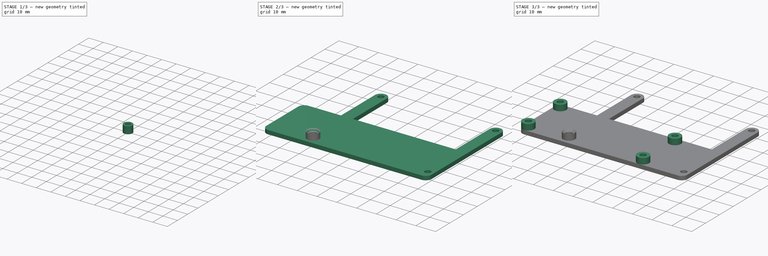
[diagram: build sequence overview — one tinted view per stage of 3, left to right]
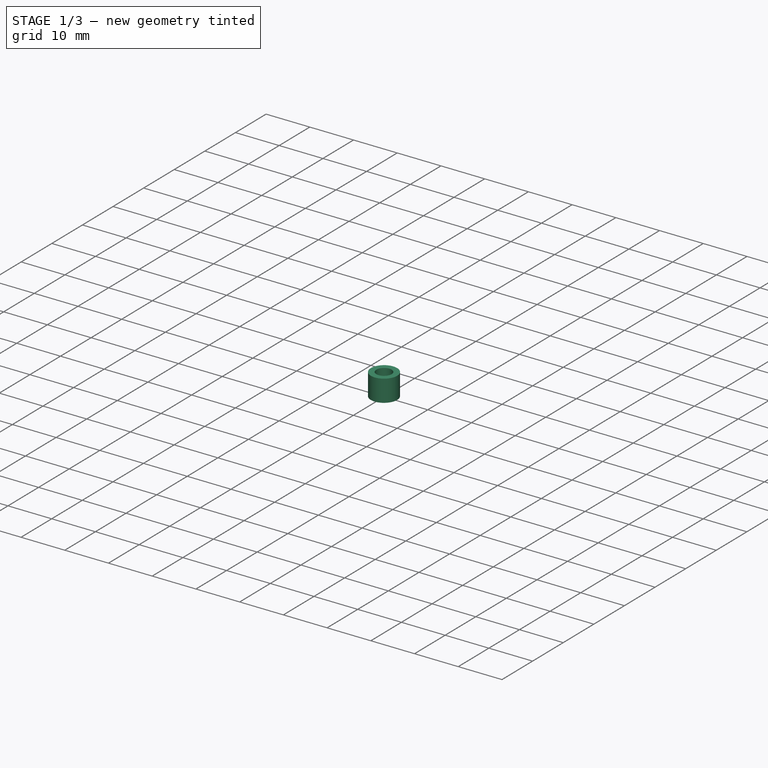
[diagram: stage 1 of 3 — iso view after this stage's code; geometry added in this stage tinted green]
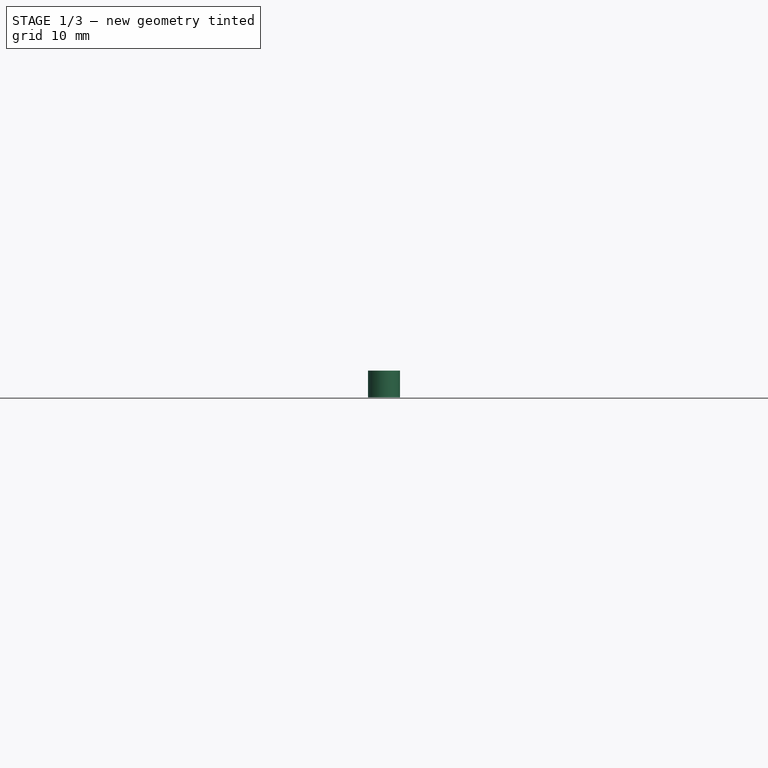
[diagram: stage 1 of 3 — front view after this stage's code; geometry added in this stage tinted green]
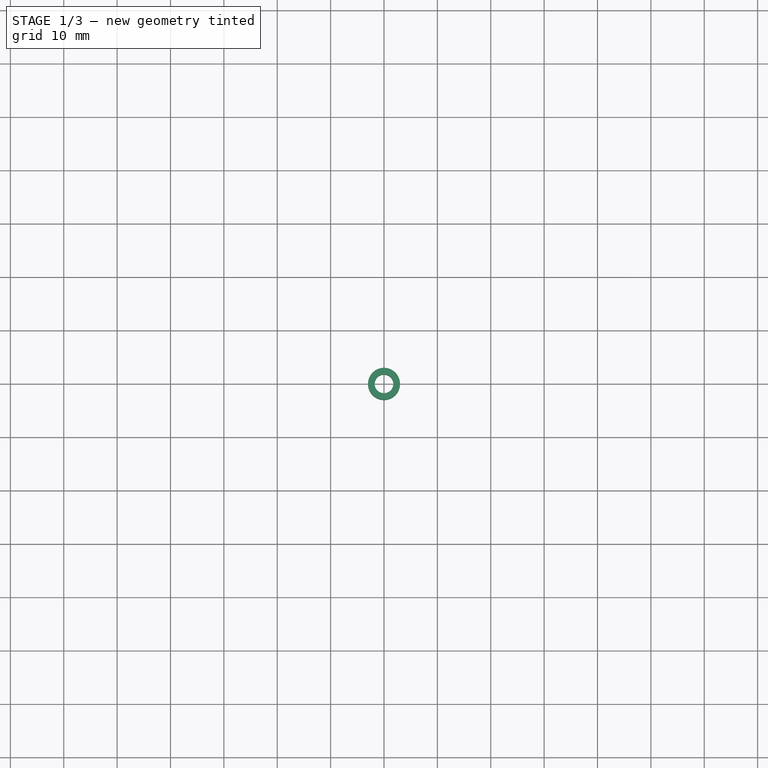
[diagram: stage 1 of 3 — top view after this stage's code; geometry added in this stage tinted green]
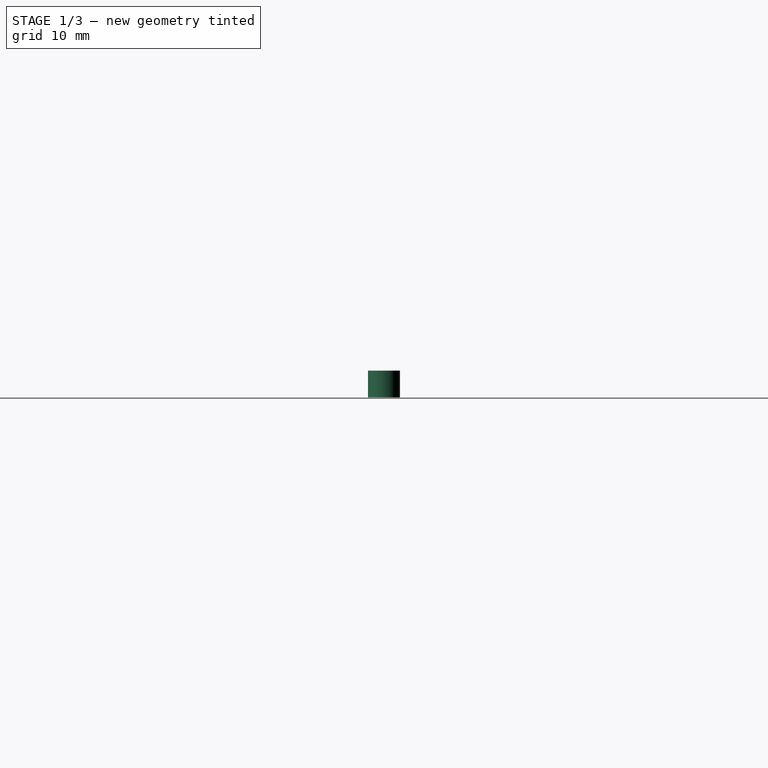
[diagram: stage 1 of 3 — right view after this stage's code; geometry added in this stage tinted green]
FCSTD DOCUMENT  (FreeCAD 0.20R)
Label: rpiz_screen_holder
License: All rights reserved
LicenseURL: http://en.wikipedia.org/wiki/All_rights_reserved
objects: Sketcher::SketchObject×5, PartDesign::Pad×3, PartDesign::Pocket×2, PartDesign::Body×2, PartDesign::Chamfer×1
note: 19 computed .brp shape members not serialized (recipe doc carries the construction recipe); baked Part::Feature solids carry a one-line shape summary decoded from their .brp

FEATURE [PartDesign::Body] Body
  Group = -> [Sketch,Pad,Sketch001,Pad001,Sketch002,Pocket]
  Origin = -> Origin
  Tip = -> Pocket
FEATURE [Sketcher::SketchObject] Sketch003
  FullyConstrained = true
  MapMode = 5
  Support = -> [XY_Plane001]
  sketch-geometry (1):
    g0: Circle CenterX=0 CenterY=0 CenterZ=0 NormalX=0 NormalY=0 NormalZ=1 AngleXU=0 Radius=3
  constraints (2):
    c: Coincident(g0,g-1)
    c: Diameter(g0) = 6
FEATURE [PartDesign::Pad] Pad002
  Direction = (0,0,1)
  Length = 5
  Length2 = 10
  Profile = -> Sketch003
  ReferenceAxis = -> Sketch003 [N_Axis]
  Type = 0
FEATURE [Sketcher::SketchObject] Sketch004
  FullyConstrained = true
  MapMode = 5
  Placement = pos=(0,0,5) rot=(0,0,1;0rad)
  Support = -> [Pad002]
  sketch-geometry (1):
    g0: Circle CenterX=0 CenterY=0 CenterZ=0 NormalX=0 NormalY=0 NormalZ=1 AngleXU=0 Radius=1.75
  constraints (2):
    c: Coincident(g0,g-1)
    c: Diameter(g0) = 3.5
FEATURE [PartDesign::Pocket] Pocket001
  BaseFeature = -> Pad002
  Direction = (0,0,-1)
  Length = 5
  Length2 = 5
  Profile = -> Sketch004
  ReferenceAxis = -> Sketch004 [N_Axis]
  Type = 1
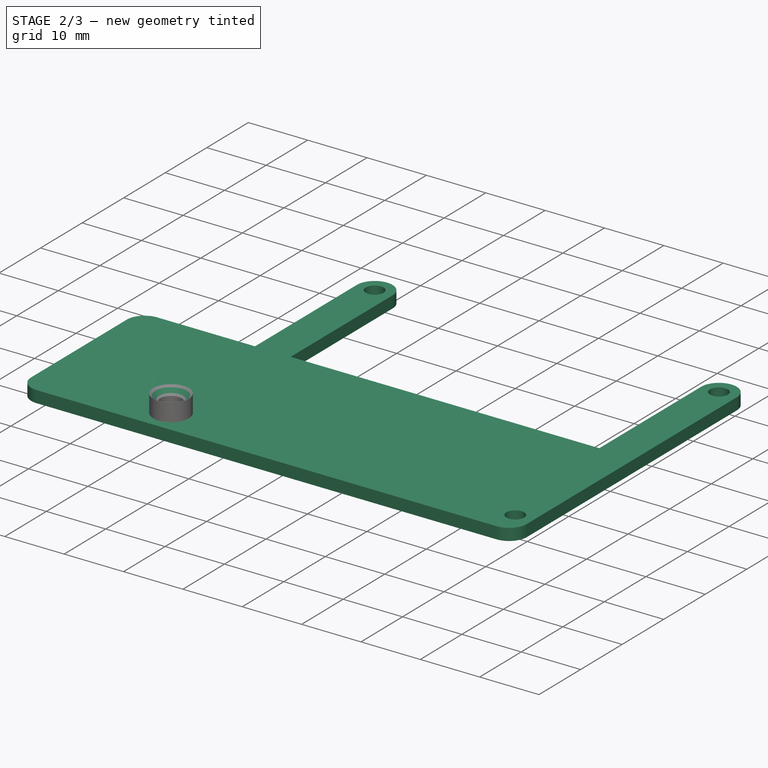
[diagram: stage 2 of 3 — iso view after this stage's code; geometry added in this stage tinted green]
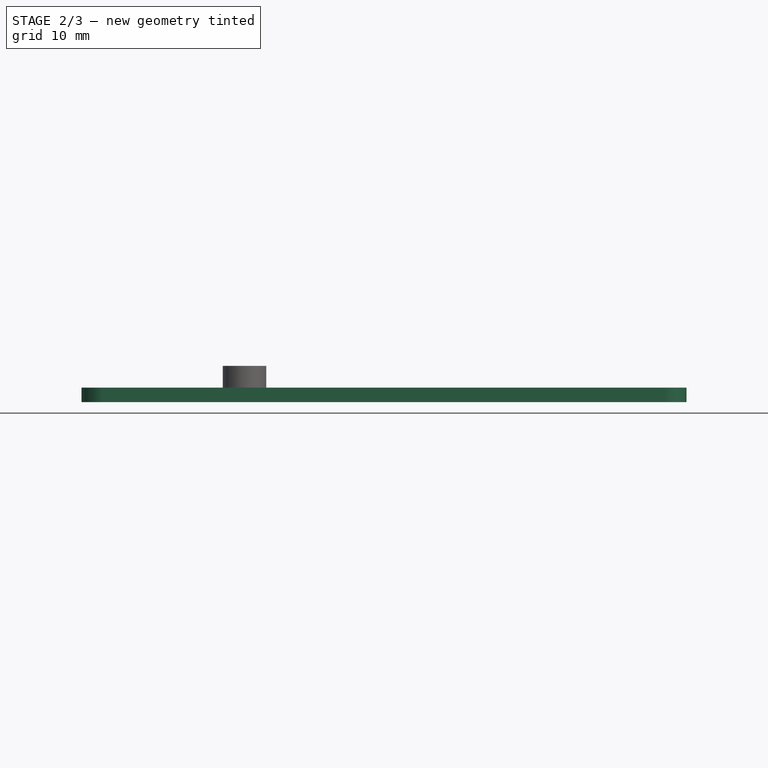
[diagram: stage 2 of 3 — front view after this stage's code; geometry added in this stage tinted green]
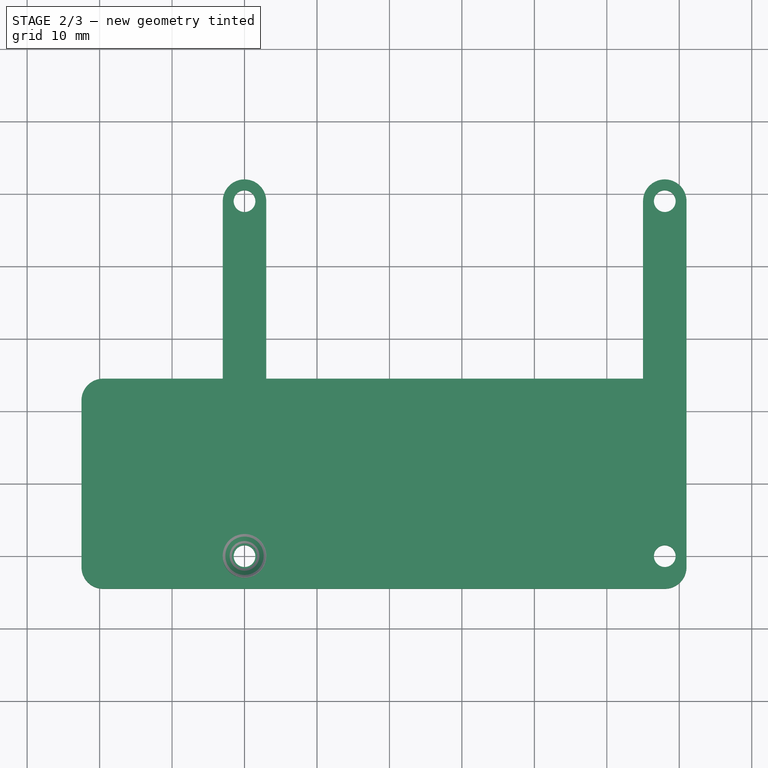
[diagram: stage 2 of 3 — top view after this stage's code; geometry added in this stage tinted green]
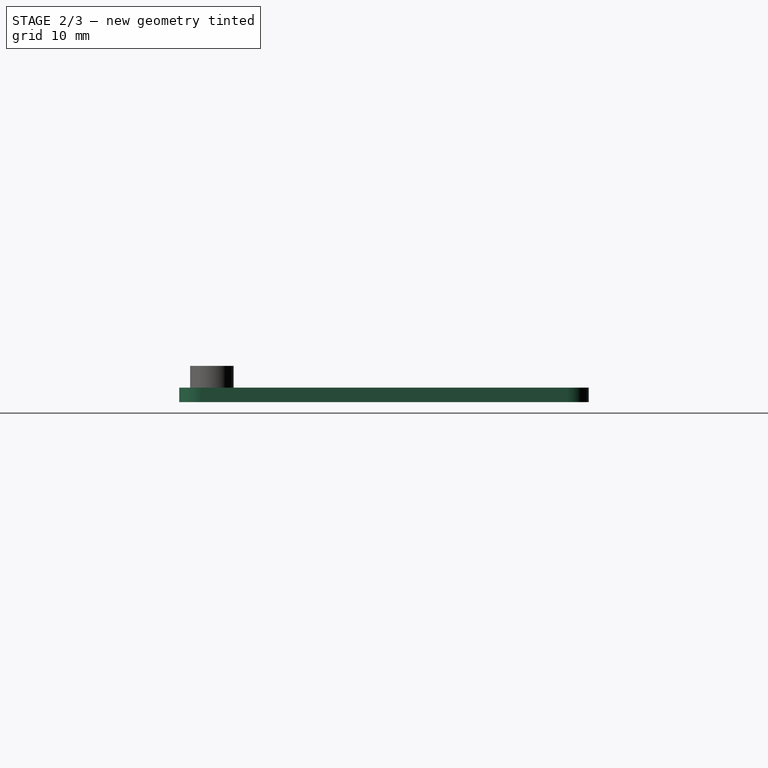
[diagram: stage 2 of 3 — right view after this stage's code; geometry added in this stage tinted green]
FEATURE [Sketcher::SketchObject] Sketch
  FullyConstrained = true
  MapMode = 5
  Support = -> [XY_Plane]
  sketch-geometry (38):
    g0: Circle CenterX=0 CenterY=0 CenterZ=0 NormalX=0 NormalY=0 NormalZ=1 AngleXU=0 Radius=1.5
    g1: Circle CenterX=58 CenterY=0 CenterZ=0 NormalX=0 NormalY=0 NormalZ=1 AngleXU=0 Radius=1.5
    g2: Circle CenterX=0 CenterY=49 CenterZ=0 NormalX=0 NormalY=0 NormalZ=1 AngleXU=0 Radius=1.5
    g3: Circle CenterX=58 CenterY=49 CenterZ=0 NormalX=0 NormalY=0 NormalZ=1 AngleXU=0 Radius=1.5
    g4: LineSegment StartX=0 StartY=0 StartZ=0 EndX=1.14583 EndY=0.968027 EndZ=0
    g5: LineSegment StartX=1.14583 StartY=0.968027 StartZ=0 EndX=56.8542 EndY=48.032 EndZ=0
    g6: LineSegment StartX=56.8542 StartY=48.032 StartZ=0 EndX=58 EndY=49 EndZ=0
    g7: LineSegment StartX=58 StartY=0 StartZ=0 EndX=56.8542 EndY=0.968027 EndZ=0
    g8: LineSegment StartX=56.8542 StartY=0.968027 StartZ=0 EndX=1.14583 EndY=48.032 EndZ=0
    g9: LineSegment StartX=1.14583 StartY=48.032 StartZ=0 EndX=0 EndY=49 EndZ=0
    g10: LineSegment StartX=0 StartY=0 StartZ=0 EndX=0 EndY=49 EndZ=0
    g11: LineSegment StartX=0 StartY=49 StartZ=0 EndX=58 EndY=49 EndZ=0
    g12: LineSegment StartX=58 StartY=49 StartZ=0 EndX=58 EndY=0 EndZ=0
    g13: ArcOfCircle CenterX=0 CenterY=49 CenterZ=0 NormalX=0 NormalY=0 NormalZ=1 AngleXU=0 Radius=3 StartAngle=0 EndAngle=3.14159
    g14: LineSegment StartX=-3 StartY=49 StartZ=0 EndX=-3 EndY=24.5 EndZ=0
    g15: LineSegment StartX=-19.5 StartY=-4.5 StartZ=0 EndX=58 EndY=-4.5 EndZ=0
    g16: ArcOfCircle CenterX=58 CenterY=49 CenterZ=0 NormalX=0 NormalY=0 NormalZ=1 AngleXU=0 Radius=3 StartAngle=7e-16 EndAngle=3.14159
    g17: LineSegment StartX=61 StartY=-1.49998 StartZ=0 EndX=61 EndY=49 EndZ=0
    g18: LineSegment StartX=3 StartY=49 StartZ=0 EndX=3 EndY=24.5 EndZ=0
    g19: LineSegment StartX=3 StartY=24.5 StartZ=0 EndX=55 EndY=24.5 EndZ=0
    g20: LineSegment StartX=55 StartY=24.5 StartZ=0 EndX=55 EndY=49 EndZ=0
    g21: LineSegment StartX=3 StartY=24.5 StartZ=0 EndX=-3 EndY=24.5 EndZ=0
    g22: LineSegment StartX=-3 StartY=24.5 StartZ=0 EndX=-19.5 EndY=24.5 EndZ=0
    g23: ArcOfCircle CenterX=-19.5 CenterY=21.5 CenterZ=0 NormalX=0 NormalY=0 NormalZ=1 AngleXU=0 Radius=3 StartAngle=1.5708 EndAngle=3.14159
    g24: LineSegment StartX=55 StartY=24.5 StartZ=0 EndX=61 EndY=24.5 EndZ=0
    g25: ArcOfCircle CenterX=-19.5 CenterY=-1.5 CenterZ=0 NormalX=0 NormalY=0 NormalZ=1 AngleXU=0 Radius=3 StartAngle=3.14159 EndAngle=4.71239
    g26: LineSegment StartX=-19.5 StartY=-4.5 StartZ=0 EndX=-19.5 EndY=-1.5 EndZ=0
    g27: LineSegment StartX=-19.5 StartY=-1.5 StartZ=0 EndX=-19.5 EndY=21.5 EndZ=0
    g28: LineSegment StartX=-19.5 StartY=21.5 StartZ=0 EndX=-19.5 EndY=24.5 EndZ=0
    g29: LineSegment StartX=-19.5 StartY=21.5 StartZ=0 EndX=-22.5 EndY=21.5 EndZ=0
    g30: LineSegment StartX=-19.5 StartY=-1.5 StartZ=0 EndX=-22.5 EndY=-1.5 EndZ=0
    g31: LineSegment StartX=-22.5 StartY=21.5 StartZ=0 EndX=-22.5 EndY=-1.5 EndZ=0
    g32: LineSegment StartX=-19.5 StartY=21.5 StartZ=0 EndX=0 EndY=21.5 EndZ=0
    g33: LineSegment StartX=-19.5 StartY=-1.5 StartZ=0 EndX=38.5 EndY=-1.5 EndZ=0
    g34: LineSegment StartX=38.5 StartY=-1.5 StartZ=0 EndX=42 EndY=-1.5 EndZ=0
    g35: LineSegment StartX=42 StartY=-1.5 StartZ=0 EndX=58 EndY=-1.5 EndZ=0
    g36: ArcOfCircle CenterX=58 CenterY=-1.5 CenterZ=0 NormalX=0 NormalY=0 NormalZ=1 AngleXU=0 Radius=3 StartAngle=4.71239 EndAngle=6.28319
    g37: LineSegment StartX=58 StartY=0 StartZ=0 EndX=58 EndY=-1.5 EndZ=0
  constraints (103):
    c: Coincident(g0,g-1)
    c: PointOnObject(g1,g-1)
    c: PointOnObject(g2,g-2)
    c: Coincident(g4,g0)
    c: PointOnObject(g4,g0)
    c: Coincident(g5,g4)
    c: PointOnObject(g5,g3)
    c: Coincident(g6,g5)
    c: Coincident(g6,g3)
    c: Coincident(g7,g1)
    c: PointOnObject(g7,g1)
    c: Coincident(g8,g7)
    c: PointOnObject(g8,g2)
    c: Coincident(g9,g8)
    c: Coincident(g9,g2)
    c: Equal(g9,g6)
    c: Equal(g6,g7)
    c: Equal(g7,g4)
    c: Diameter(g1) = 3
    c: Parallel(g7,g8)
    c: Parallel(g8,g9)
    c: Parallel(g4,g5)
    c: Parallel(g5,g6)
    c: Coincident(g10,g0)
    c: Coincident(g10,g2)
    c: Coincident(g11,g2)
    c: Coincident(g11,g3)
    c: Horizontal(g11)
    c: Coincident(g12,g3)
    c: Coincident(g12,g1)
    c: Vertical(g12)
    c: Distance(g11) = 58
    c: Distance(g12) = 49
    c: Coincident(g13,g2)
    c: PointOnObject(g13,g11)
    c: PointOnObject(g13,g11)
    c: Coincident(g14,g13)
    c: Vertical(g14)
    c: PointOnObject(g15,g12)
    c: Horizontal(g15)
    c: Coincident(g16,g3)
    c: PointOnObject(g16,g11)
    c: PointOnObject(g16,g11)
    c: Coincident(g17,g16)
    c: Vertical(g17)
    c: Coincident(g18,g13)
    c: Vertical(g18)
    c: Coincident(g19,g18)
    c: Horizontal(g19)
    c: Coincident(g20,g19)
    c: Coincident(g20,g16)
    c: Vertical(g20)
    c: Coincident(g21,g18)
    c: Coincident(g21,g14)
    c: Horizontal(g21)
    c: Coincident(g22,g14)
    c: Horizontal(g22)
    c: Coincident(g23,g22)
    c: Coincident(g24,g19)
    c: PointOnObject(g24,g17)
    c: Horizontal(g24)
    c: Equal(g24,g21)
    c: Coincident(g25,g15)
    c: Coincident(g26,g15)
    c: Coincident(g26,g25)
    c: Vertical(g26)
    c: Coincident(g27,g25)
    c: Coincident(g27,g23)
    c: Vertical(g27)
    c: Coincident(g28,g23)
    c: Coincident(g28,g22)
    c: Vertical(g28)
    c: Equal(g28,g26)
    c: Coincident(g29,g23)
    c: Coincident(g29,g23)
    c: Coincident(g30,g25)
    c: Coincident(g30,g25)
    c: Horizontal(g30)
    c: Horizontal(g29)
    c: Coincident(g31,g23)
    c: Coincident(g31,g25)
    c: Distance(g27) = 23
    c: Radius(g13) = 3
    c: Radius(g23) = 3
    c: Coincident(g32,g23)
    c: PointOnObject(g32,g10)
    c: Horizontal(g32)
    c: Coincident(g33,g25)
    c: Horizontal(g33)
    c: Distance(g33) = 58
    c: Coincident(g34,g33)
    c: Distance(g34) = 3.5
    c: Horizontal(g34)
    c: Coincident(g35,g34)
    c: Horizontal(g35)
    c: PointOnObject(g35,g12)
    c: Distance(g35) = 16
    c: Coincident(g36,g15)
    c: Coincident(g36,g17)
    c: Coincident(g35,g36)
    c: Coincident(g37,g1)
    c: Coincident(g37,g36)
    c: Distance(g37) = 1.5
FEATURE [PartDesign::Pad] Pad
  Direction = (0,0,1)
  Length = 2
  Length2 = 10
  Profile = -> Sketch
  ReferenceAxis = -> Sketch [N_Axis]
  Type = 0
FEATURE [PartDesign::Chamfer] Chamfer
  Angle = 45
  Base = -> Pocket001 [Edge5]
  BaseFeature = -> Pocket001
  ChamferType = 0
  FlipDirection = false
  Size = 1.2
  Size2 = 1
  SupportTransform = false
  UseAllEdges = false
FEATURE [PartDesign::Body] Body001
  Group = -> [Sketch003,Pad002,Sketch004,Pocket001,Chamfer]
  Origin = -> Origin001
  Tip = -> Chamfer
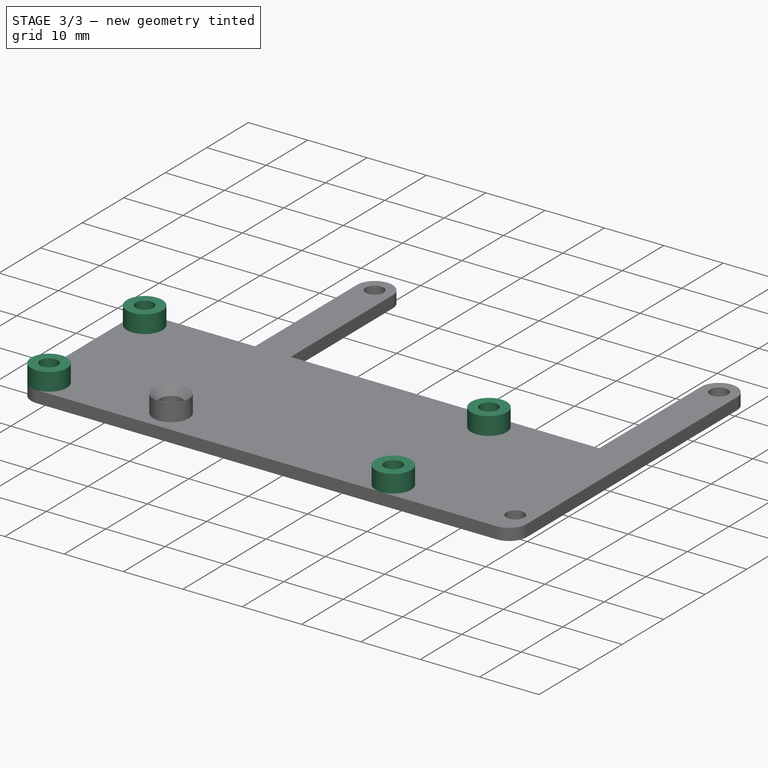
[diagram: stage 3 of 3 — iso view after this stage's code; geometry added in this stage tinted green]
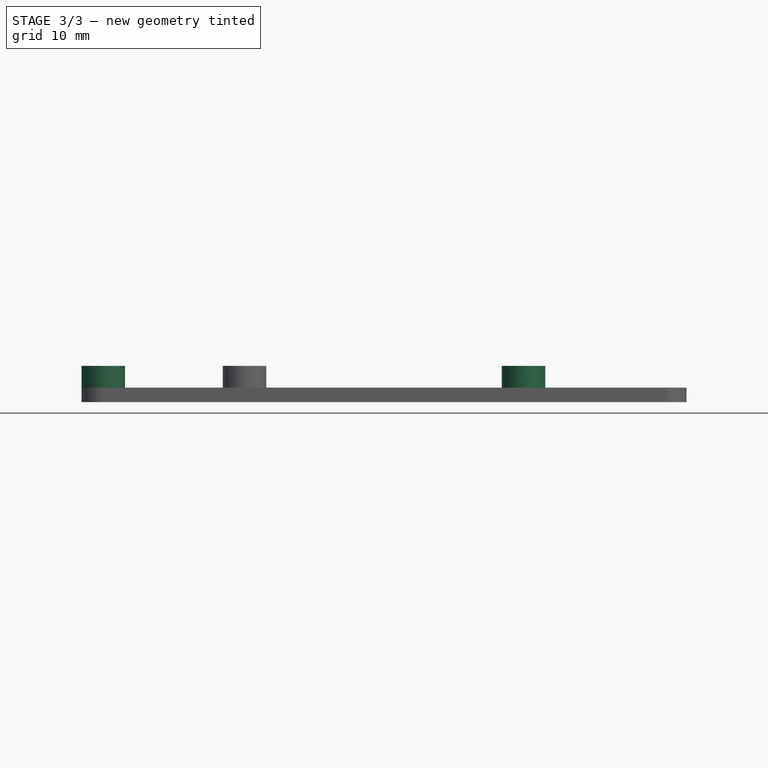
[diagram: stage 3 of 3 — front view after this stage's code; geometry added in this stage tinted green]
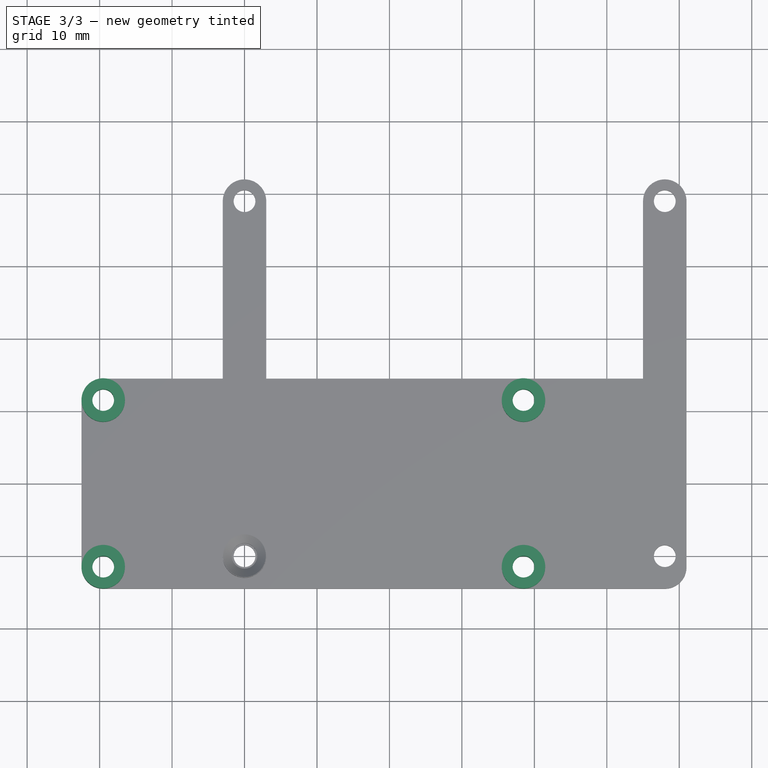
[diagram: stage 3 of 3 — top view after this stage's code; geometry added in this stage tinted green]
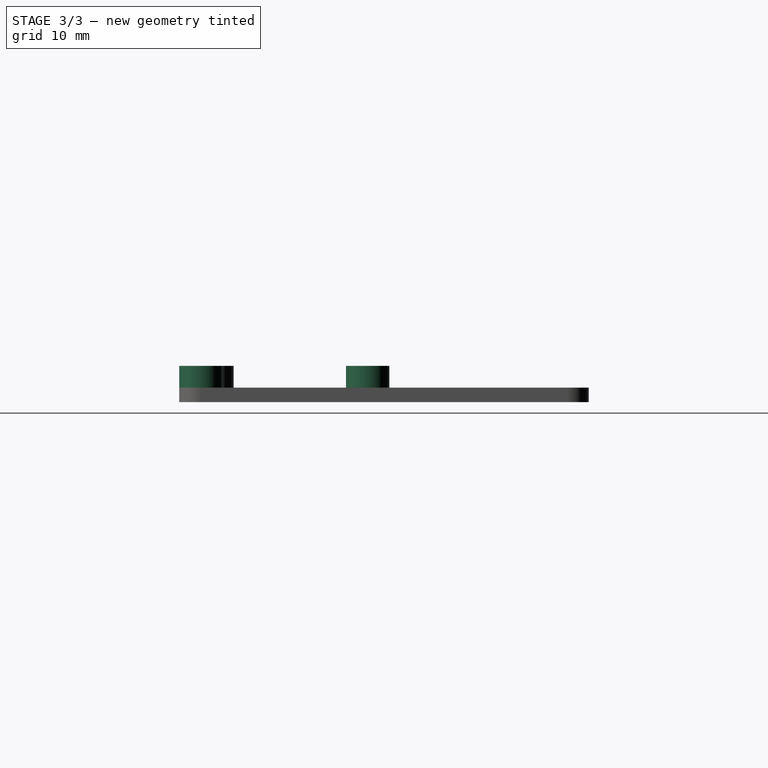
[diagram: stage 3 of 3 — right view after this stage's code; geometry added in this stage tinted green]
FEATURE [Sketcher::SketchObject] Sketch001
  ExternalGeometry = -> [Pad]
  FullyConstrained = true
  MapMode = 5
  Placement = pos=(0,0,2) rot=(0,0,1;0rad)
  Support = -> [Pad]
  sketch-geometry (11):
    g0: Circle CenterX=-19.5 CenterY=21.5 CenterZ=0 NormalX=0 NormalY=0 NormalZ=1 AngleXU=0 Radius=3
    g1: Circle CenterX=-19.5 CenterY=-1.5 CenterZ=0 NormalX=0 NormalY=0 NormalZ=1 AngleXU=0 Radius=3
    g2: Circle CenterX=38.5 CenterY=21.5 CenterZ=0 NormalX=0 NormalY=0 NormalZ=1 AngleXU=0 Radius=3
    g3: Circle CenterX=38.5 CenterY=-1.5 CenterZ=0 NormalX=0 NormalY=0 NormalZ=1 AngleXU=0 Radius=3
    g4: LineSegment StartX=-19.5 StartY=21.5 StartZ=0 EndX=-19.5 EndY=18.5 EndZ=0
    g5: LineSegment StartX=38.5 StartY=18.5 StartZ=0 EndX=38.5 EndY=21.5 EndZ=0
    g6: LineSegment StartX=38.5 StartY=1.5 StartZ=0 EndX=38.5 EndY=-1.5 EndZ=0
    g7: LineSegment StartX=-19.5 StartY=-1.5 StartZ=0 EndX=-19.5 EndY=1.5 EndZ=0
    g8: LineSegment StartX=-19.5 StartY=21.5 StartZ=0 EndX=38.5 EndY=21.5 EndZ=0
    g9: LineSegment StartX=38.5 StartY=18.5 StartZ=0 EndX=38.5 EndY=1.5 EndZ=0
    g10: LineSegment StartX=-19.5 StartY=-1.5 StartZ=0 EndX=38.5 EndY=-1.5 EndZ=0
  constraints (28):
    c: Coincident(g0,g-4)
    c: Coincident(g1,g-3)
    c: Coincident(g4,g0)
    c: PointOnObject(g4,g0)
    c: PointOnObject(g5,g2)
    c: Coincident(g5,g2)
    c: PointOnObject(g6,g3)
    c: Coincident(g6,g3)
    c: Vertical(g6)
    c: Coincident(g7,g1)
    c: PointOnObject(g7,g1)
    c: Vertical(g7)
    c: Equal(g7,g4)
    c: Equal(g4,g5)
    c: Equal(g5,g6)
    c: PointOnObject(g-3,g1)
    c: Vertical(g4)
    c: Vertical(g5)
    c: Coincident(g8,g0)
    c: Coincident(g8,g2)
    c: Horizontal(g8)
    c: Coincident(g9,g5)
    c: Coincident(g9,g6)
    c: Vertical(g9)
    c: Distance(g8) = 58
    c: Coincident(g10,g1)
    c: Coincident(g10,g3)
    c: Horizontal(g10)
FEATURE [PartDesign::Pad] Pad001
  BaseFeature = -> Pad
  Direction = (0,0,1)
  Length = 3
  Length2 = 10
  Profile = -> Sketch001
  ReferenceAxis = -> Sketch001 [N_Axis]
  Type = 0
FEATURE [Sketcher::SketchObject] Sketch002
  ExternalGeometry = -> [Pad001]
  FullyConstrained = true
  MapMode = 5
  Placement = pos=(0,0,5) rot=(0,0,1;0rad)
  Support = -> [Pad001]
  sketch-geometry (8):
    g0: Circle CenterX=-19.5 CenterY=21.5 CenterZ=0 NormalX=0 NormalY=0 NormalZ=1 AngleXU=0 Radius=1.5
    g1: Circle CenterX=-19.5 CenterY=-1.5 CenterZ=0 NormalX=0 NormalY=0 NormalZ=1 AngleXU=0 Radius=1.5
    g2: Circle CenterX=38.5 CenterY=21.5 CenterZ=0 NormalX=0 NormalY=0 NormalZ=1 AngleXU=0 Radius=1.5
    g3: Circle CenterX=38.5 CenterY=-1.5 CenterZ=0 NormalX=0 NormalY=0 NormalZ=1 AngleXU=0 Radius=1.5
    g4: LineSegment StartX=-19.5 StartY=21.5 StartZ=0 EndX=-19.5 EndY=23 EndZ=0
    g5: LineSegment StartX=-19.5 StartY=-1.5 StartZ=0 EndX=-19.5 EndY=-3 EndZ=0
    g6: LineSegment StartX=38.5 StartY=21.5 StartZ=0 EndX=38.5 EndY=23 EndZ=0
    g7: LineSegment StartX=38.5 StartY=-1.5 StartZ=0 EndX=38.5 EndY=-3 EndZ=0
  constraints (20):
    c: Coincident(g4,g0)
    c: PointOnObject(g4,g0)
    c: Coincident(g5,g1)
    c: PointOnObject(g5,g1)
    c: Coincident(g6,g2)
    c: PointOnObject(g6,g2)
    c: Coincident(g7,g3)
    c: PointOnObject(g7,g3)
    c: Vertical(g7)
    c: Vertical(g6)
    c: Vertical(g4)
    c: Vertical(g5)
    c: Equal(g7,g6)
    c: Equal(g6,g4)
    c: Equal(g4,g5)
    c: Diameter(g0) = 3
    c: Coincident(g0,g-3)
    c: Coincident(g1,g-4)
    c: Coincident(g2,g-5)
    c: Coincident(g3,g-6)
FEATURE [PartDesign::Pocket] Pocket
  BaseFeature = -> Pad001
  Direction = (0,0,-1)
  Length = 5
  Length2 = 5
  Profile = -> Sketch002
  ReferenceAxis = -> Sketch002 [N_Axis]
  Type = 1
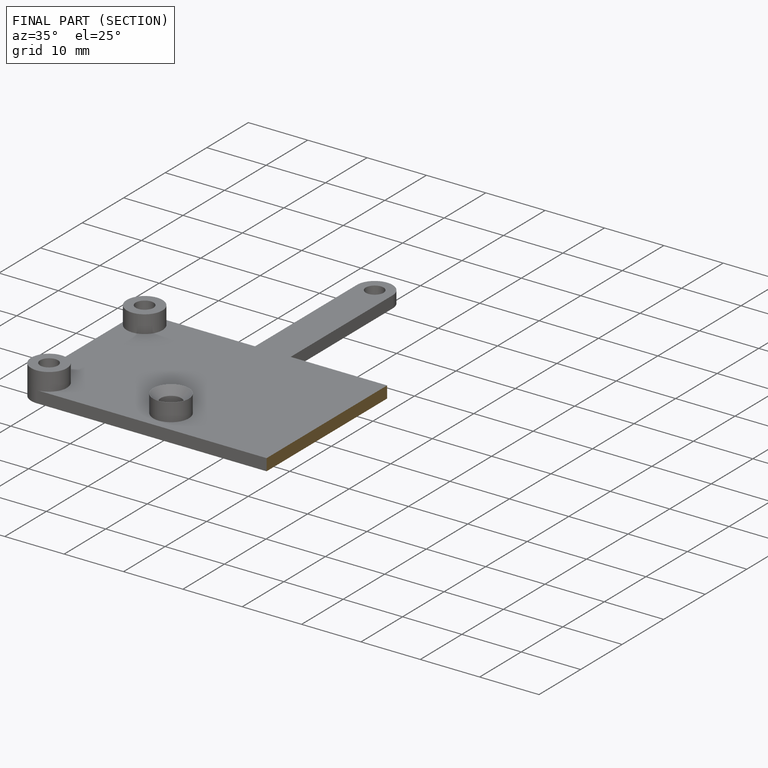
[diagram: finished part — half-section view (interior)]
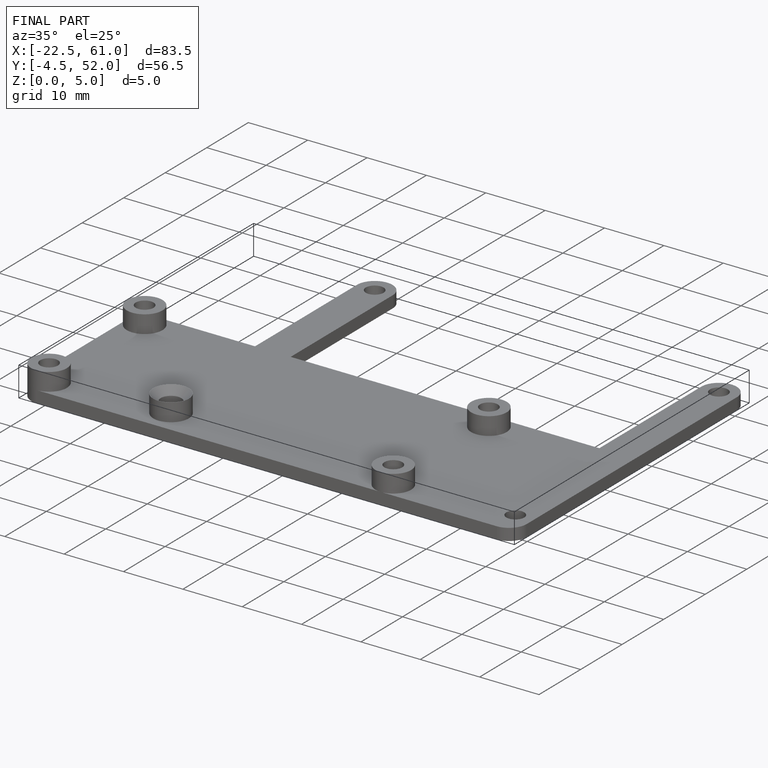
[diagram: finished part — iso view with bounding-box wireframe]
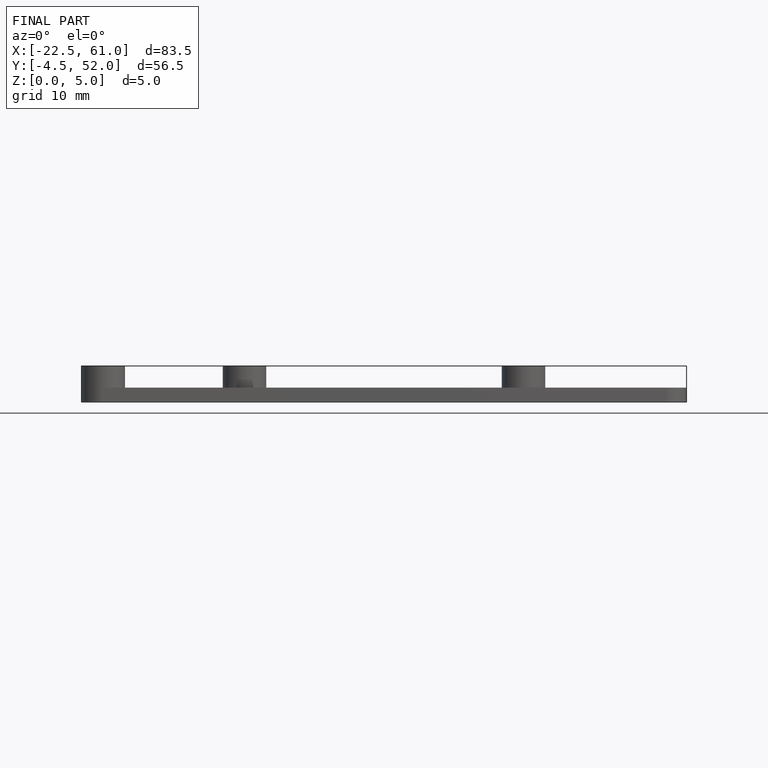
[diagram: finished part — front view with bounding-box wireframe]
